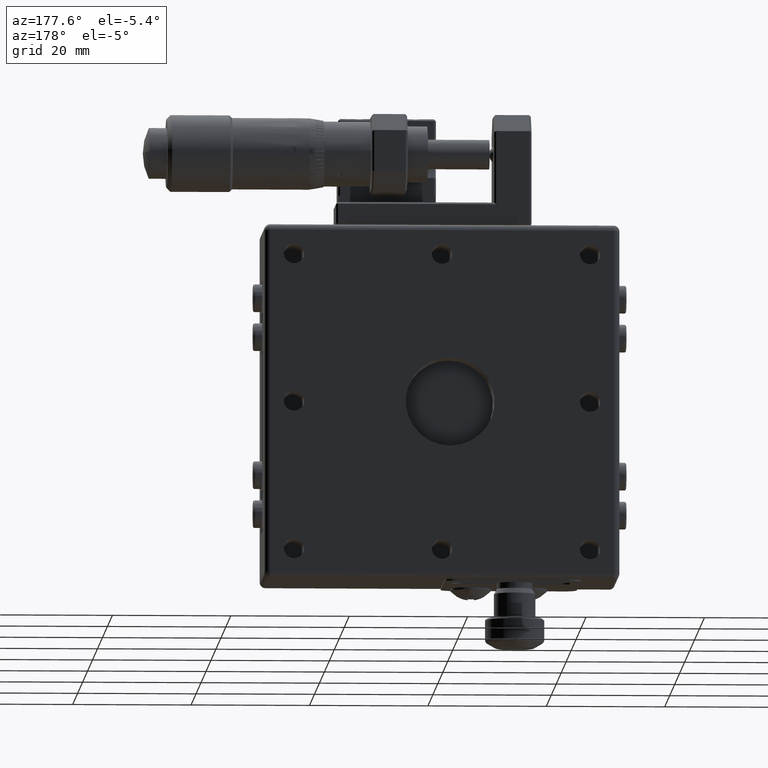
[diagram: clean part render]
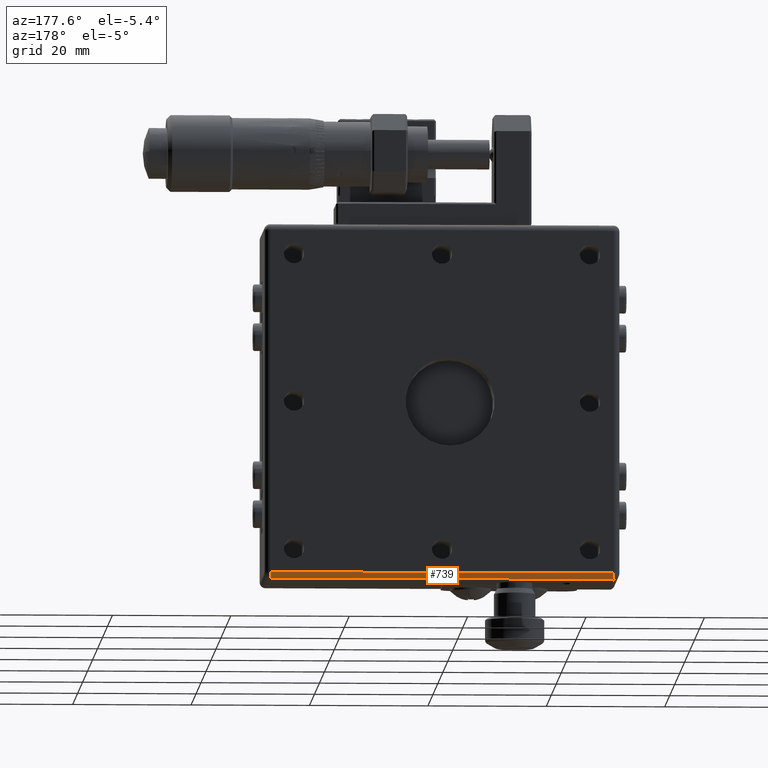
[diagram: same view with one face highlighted and labeled with its STEP entity id]
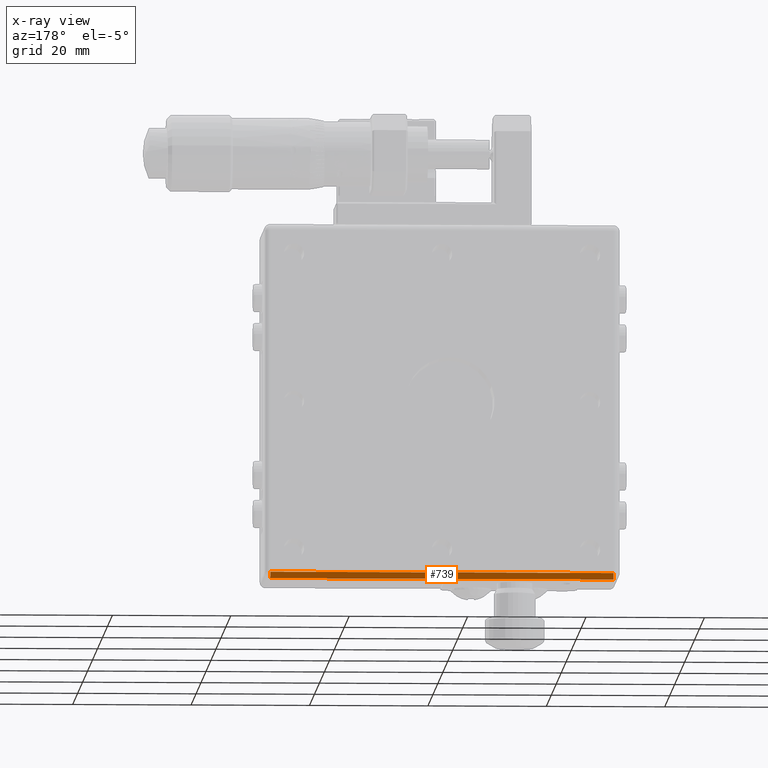
[diagram: x-ray of the same camera — body ghosted, the highlighted face saturated]
A machine part, auxiliary view. The second image highlights one B-rep face of the part: STEP entity #739.
The next image is the same camera in x-ray: the body ghosted, the highlighted face saturated — about 0% of this face is hidden behind the body in this view.
In plain terms, the highlighted cylindrical surface (edge-blend (fillet) strip) has radius 1 mm, axis along (-1, 0, 0).
Its self-contained STEP definition (entity closure, byte-faithful):
#739 = ADVANCED_FACE ( 'NONE', ( #2094 ), #23551, .T. ) ;
#2094 = FACE_OUTER_BOUND ( 'NONE', #10105, .T. ) ;
#2110 = CIRCLE ( 'NONE', #18158, 1.000000000000000888 ) ;
#2775 = CARTESIAN_POINT ( 'NONE',  ( 31.37353433835844640, 8.605938034382798918, -30.00000000000000000 ) ) ;
#3141 = ORIENTED_EDGE ( 'NONE', *, *, #16651, .F. ) ;
#4108 = CARTESIAN_POINT ( 'NONE',  ( 31.37353433835844640, 8.605938034382798918, -29.99999999999999645 ) ) ;
#4285 = EDGE_CURVE ( 'NONE', #13053, #23536, #2110, .T. ) ;
#5446 = CARTESIAN_POINT ( 'NONE',  ( -27.62646566164155004, 9.605938034382809576, -29.00000000000000000 ) ) ;
#7063 = CARTESIAN_POINT ( 'NONE',  ( 0.1968941502777227515, 8.605938034382798918, -30.00000000000000000 ) ) ;
#7733 = CIRCLE ( 'NONE', #14842, 1.000000000000000888 ) ;
#8522 = CARTESIAN_POINT ( 'NONE',  ( 30.37353433835844996, 8.605938034382798918, -30.00000000000000000 ) ) ;
#10105 = EDGE_LOOP ( 'NONE', ( #24314, #3141, #30149, #10565, #21133, #43648 ) ) ;
#10354 = DIRECTION ( 'NONE',  ( 0.000000000000000000, 0.000000000000000000, -1.000000000000000000 ) ) ;
#10565 = ORIENTED_EDGE ( 'NONE', *, *, #40190, .F. ) ;
#10694 = CARTESIAN_POINT ( 'NONE',  ( 31.37353433835844640, 8.605938034382798918, -30.00000000000000000 ) ) ;
#10710 = DIRECTION ( 'NONE',  ( 0.000000000000000000, 0.000000000000000000, 1.000000000000000000 ) ) ;
#11608 = VECTOR ( 'NONE', #37506, 1000.000000000000000 ) ;
#13053 = VERTEX_POINT ( 'NONE', #8522 ) ;
#14842 = AXIS2_PLACEMENT_3D ( 'NONE', #30741, #30451, #34642 ) ;
#16232 = VERTEX_POINT ( 'NONE', #42782 ) ;
#16651 = EDGE_CURVE ( 'NONE', #37778, #13053, #19621, .T. ) ;
#16881 = EDGE_CURVE ( 'NONE', #52902, #16232, #7733, .T. ) ;
#18158 = AXIS2_PLACEMENT_3D ( 'NONE', #36241, #40133, #10354 ) ;
#19108 = CARTESIAN_POINT ( 'NONE',  ( 31.37353433835844640, 8.605938034382798918, -29.00000000000000000 ) ) ;
#19621 = LINE ( 'NONE', #10694, #48627 ) ;
#20008 = CARTESIAN_POINT ( 'NONE',  ( 30.37353433835844996, 9.605938034382809576, -29.00000000000000000 ) ) ;
#21133 = ORIENTED_EDGE ( 'NONE', *, *, #16881, .F. ) ;
#21682 = DIRECTION ( 'NONE',  ( -1.000000000000000000, 0.000000000000000000, 0.000000000000000000 ) ) ;
#23536 = VERTEX_POINT ( 'NONE', #20008 ) ;
#23551 = CYLINDRICAL_SURFACE ( 'NONE', #51955, 1.000000000000000888 ) ;
#24314 = ORIENTED_EDGE ( 'NONE', *, *, #4285, .F. ) ;
#27614 = EDGE_CURVE ( 'NONE', #23536, #52902, #30577, .T. ) ;
#30149 = ORIENTED_EDGE ( 'NONE', *, *, #39590, .F. ) ;
#30451 = DIRECTION ( 'NONE',  ( -1.000000000000000000, 0.000000000000000000, 0.000000000000000000 ) ) ;
#30577 = LINE ( 'NONE', #47570, #38382 ) ;
#30741 = CARTESIAN_POINT ( 'NONE',  ( -27.62646566164155004, 8.605938034382798918, -29.00000000000000000 ) ) ;
#31286 = LINE ( 'NONE', #2775, #38338 ) ;
#31834 = VERTEX_POINT ( 'NONE', #46353 ) ;
#34642 = DIRECTION ( 'NONE',  ( 0.000000000000000000, 0.000000000000000000, 1.000000000000000000 ) ) ;
#35475 = DIRECTION ( 'NONE',  ( 1.000000000000000000, 0.000000000000000000, 0.000000000000000000 ) ) ;
#36080 = DIRECTION ( 'NONE',  ( -1.000000000000000000, 0.000000000000000000, 0.000000000000000000 ) ) ;
#36241 = CARTESIAN_POINT ( 'NONE',  ( 30.37353433835844996, 8.605938034382798918, -29.00000000000000000 ) ) ;
#37506 = DIRECTION ( 'NONE',  ( 1.000000000000000000, -0.000000000000000000, -0.000000000000000000 ) ) ;
#37778 = VERTEX_POINT ( 'NONE', #7063 ) ;
#38338 = VECTOR ( 'NONE', #35475, 1000.000000000000000 ) ;
#38382 = VECTOR ( 'NONE', #21682, 1000.000000000000000 ) ;
#39590 = EDGE_CURVE ( 'NONE', #31834, #37778, #55034, .T. ) ;
#40133 = DIRECTION ( 'NONE',  ( 1.000000000000000000, 0.000000000000000000, 0.000000000000000000 ) ) ;
#40190 = EDGE_CURVE ( 'NONE', #16232, #31834, #31286, .T. ) ;
#40519 = DIRECTION ( 'NONE',  ( 1.000000000000000000, 0.000000000000000000, 0.000000000000000000 ) ) ;
#42782 = CARTESIAN_POINT ( 'NONE',  ( -27.62646566164155004, 8.605938034382798918, -30.00000000000000000 ) ) ;
#43648 = ORIENTED_EDGE ( 'NONE', *, *, #27614, .F. ) ;
#46353 = CARTESIAN_POINT ( 'NONE',  ( -21.44982547356081426, 8.605938034382798918, -30.00000000000000000 ) ) ;
#47570 = CARTESIAN_POINT ( 'NONE',  ( 31.37353433835844640, 9.605938034382809576, -29.00000000000000000 ) ) ;
#48627 = VECTOR ( 'NONE', #40519, 1000.000000000000000 ) ;
#51955 = AXIS2_PLACEMENT_3D ( 'NONE', #19108, #36080, #10710 ) ;
#52902 = VERTEX_POINT ( 'NONE', #5446 ) ;
#55034 = LINE ( 'NONE', #4108, #11608 ) ;